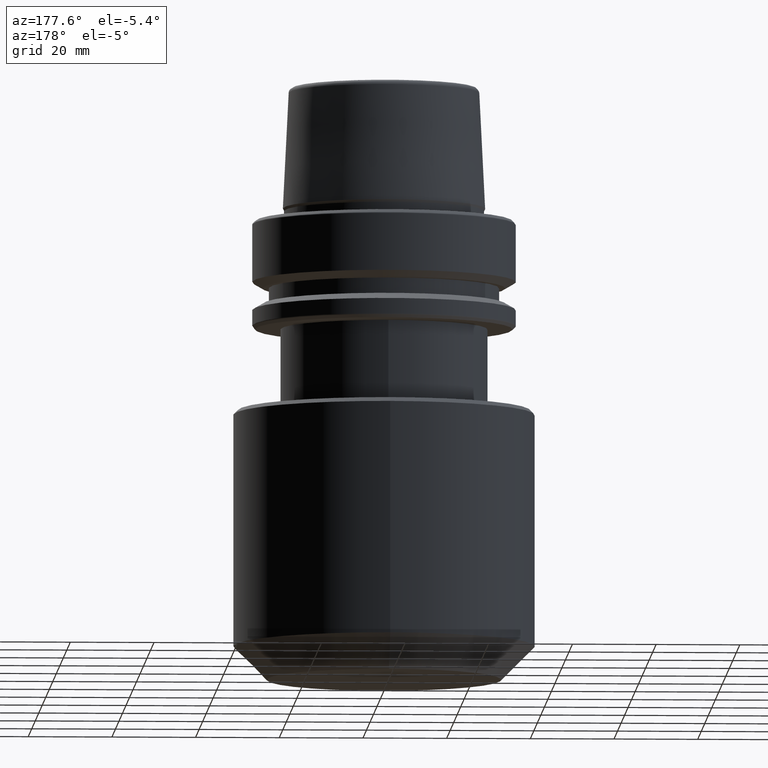
[diagram: clean part render]
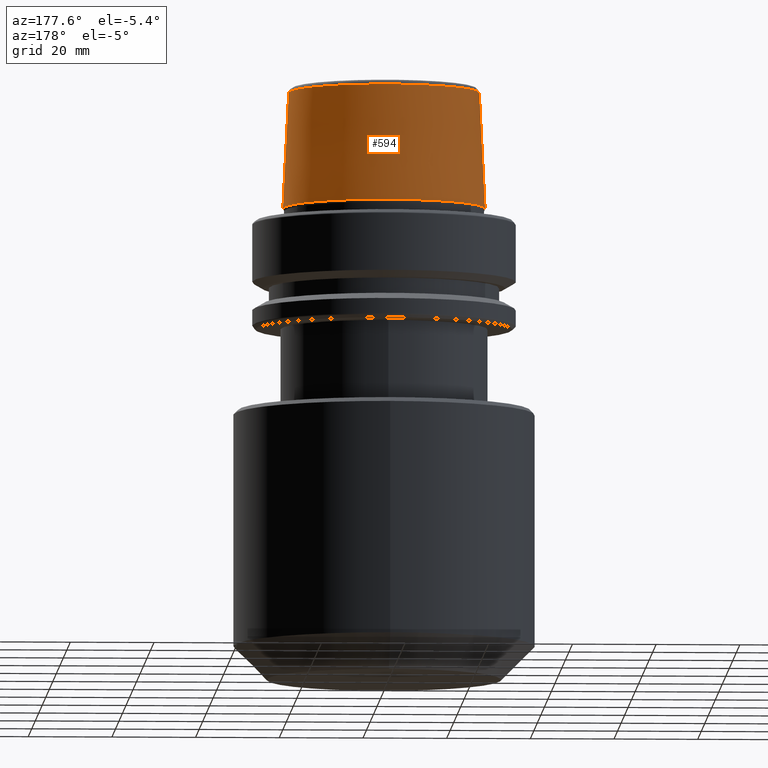
[diagram: same view with one face highlighted and labeled with its STEP entity id]
A machine part, auxiliary view. The second image highlights one B-rep face of the part: STEP entity #594.
In plain terms, the highlighted conical surface has half-angle 2.868 deg.
Its self-contained STEP definition (entity closure, byte-faithful):
#40 = EDGE_CURVE ( 'NONE', #1207, #1172, #1055, .T. ) ;
#59 = ORIENTED_EDGE ( 'NONE', *, *, #40, .T. ) ;
#96 = ORIENTED_EDGE ( 'NONE', *, *, #963, .F. ) ;
#142 = VECTOR ( 'NONE', #684, 1000.000000000000200 ) ;
#176 = CONICAL_SURFACE ( 'NONE', #1252, 24.17032625081241900, 0.05005701257456005000 ) ;
#244 = DIRECTION ( 'NONE',  ( 0.0000000000000000000, 0.0000000000000000000, -1.000000000000000000 ) ) ;
#276 = ORIENTED_EDGE ( 'NONE', *, *, #376, .F. ) ;
#305 = DIRECTION ( 'NONE',  ( 1.000000000000000000, 0.0000000000000000000, 0.0000000000000000000 ) ) ;
#329 = ORIENTED_EDGE ( 'NONE', *, *, #1376, .T. ) ;
#352 = VECTOR ( 'NONE', #453, 1000.000000000000200 ) ;
#376 = EDGE_CURVE ( 'NONE', #1207, #428, #1177, .T. ) ;
#428 = VERTEX_POINT ( 'NONE', #624 ) ;
#444 = CARTESIAN_POINT ( 'NONE',  ( 22.77957961851797100, 2.874852597157249900E-015, 30.76004333261571900 ) ) ;
#453 = DIRECTION ( 'NONE',  ( 0.05003611051310812000, 6.127656258166108900E-018, -0.9987474093306675200 ) ) ;
#513 = DIRECTION ( 'NONE',  ( 1.000000000000000000, 0.0000000000000000000, 0.0000000000000000000 ) ) ;
#547 = CIRCLE ( 'NONE', #1099, 24.17032625081241900 ) ;
#594 = ADVANCED_FACE ( 'NONE', ( #694 ), #176, .T. ) ;
#597 = EDGE_LOOP ( 'NONE', ( #276, #59, #329, #96 ) ) ;
#612 = DIRECTION ( 'NONE',  ( -0.0000000000000000000, -0.0000000000000000000, 1.000000000000000000 ) ) ;
#624 = CARTESIAN_POINT ( 'NONE',  ( -22.77957961851797100, 0.0000000000000000000, 30.76004333261571900 ) ) ;
#672 = CARTESIAN_POINT ( 'NONE',  ( -24.17032625081241900, 2.960011267740467600E-015, 3.000000000000002700 ) ) ;
#684 = DIRECTION ( 'NONE',  ( -0.05003611051310812000, 0.0000000000000000000, -0.9987474093306675200 ) ) ;
#694 = FACE_OUTER_BOUND ( 'NONE', #597, .T. ) ;
#750 = AXIS2_PLACEMENT_3D ( 'NONE', #1040, #819, #305 ) ;
#755 = VERTEX_POINT ( 'NONE', #672 ) ;
#807 = LINE ( 'NONE', #1000, #142 ) ;
#819 = DIRECTION ( 'NONE',  ( -0.0000000000000000000, -0.0000000000000000000, 1.000000000000000000 ) ) ;
#873 = CARTESIAN_POINT ( 'NONE',  ( 0.0000000000000000000, 0.0000000000000000000, 3.000000000000002700 ) ) ;
#963 = EDGE_CURVE ( 'NONE', #428, #755, #807, .T. ) ;
#966 = CARTESIAN_POINT ( 'NONE',  ( 24.17032625081241900, 0.0000000000000000000, 3.000000000000002700 ) ) ;
#1000 = CARTESIAN_POINT ( 'NONE',  ( -24.17032625081241900, 0.0000000000000000000, 3.000000000000002700 ) ) ;
#1040 = CARTESIAN_POINT ( 'NONE',  ( 0.0000000000000000000, 0.0000000000000000000, 30.76004333261571900 ) ) ;
#1055 = LINE ( 'NONE', #1309, #352 ) ;
#1099 = AXIS2_PLACEMENT_3D ( 'NONE', #1250, #612, #513 ) ;
#1172 = VERTEX_POINT ( 'NONE', #966 ) ;
#1177 = CIRCLE ( 'NONE', #750, 22.77957961851797100 ) ;
#1197 = DIRECTION ( 'NONE',  ( -1.000000000000000000, 0.0000000000000000000, 0.0000000000000000000 ) ) ;
#1207 = VERTEX_POINT ( 'NONE', #444 ) ;
#1250 = CARTESIAN_POINT ( 'NONE',  ( 0.0000000000000000000, 0.0000000000000000000, 3.000000000000002700 ) ) ;
#1252 = AXIS2_PLACEMENT_3D ( 'NONE', #873, #244, #1197 ) ;
#1309 = CARTESIAN_POINT ( 'NONE',  ( 24.17032625081241900, 2.960011267740467600E-015, 3.000000000000002700 ) ) ;
#1376 = EDGE_CURVE ( 'NONE', #1172, #755, #547, .T. ) ;